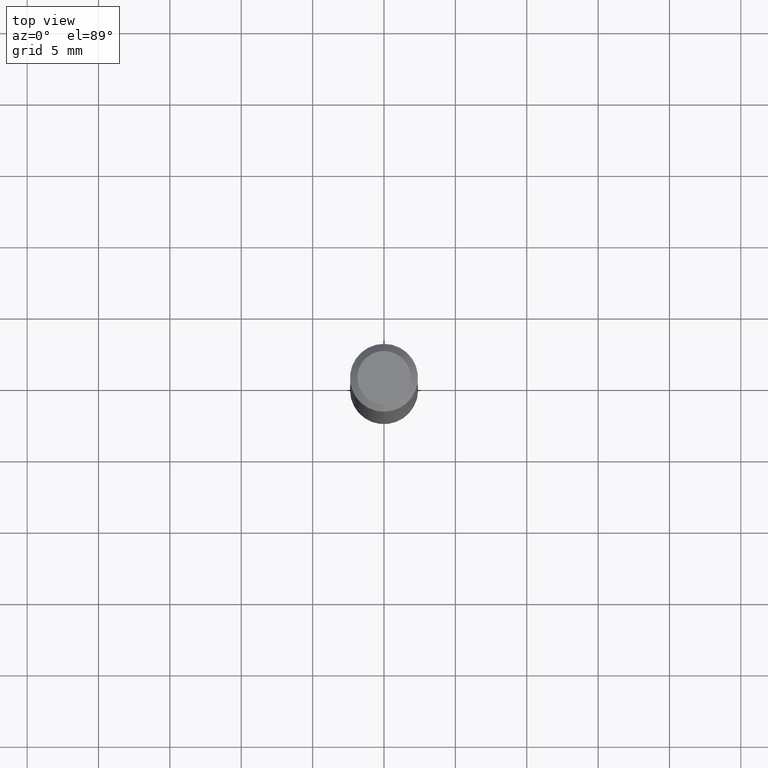
[diagram: clean part render]
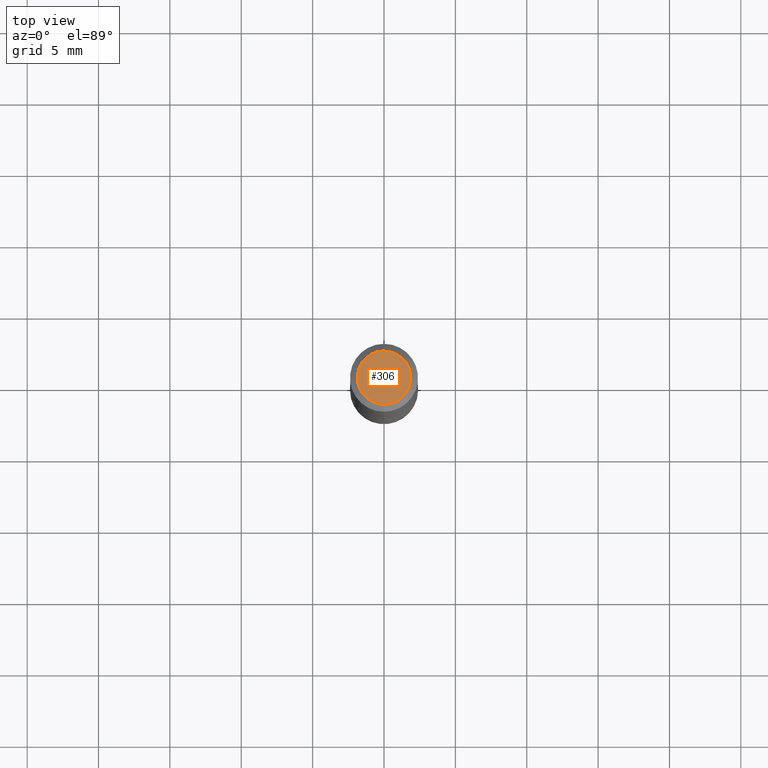
[diagram: same view with one face highlighted and labeled with its STEP entity id]
A machine part, top view. The second image highlights one B-rep face of the part: STEP entity #306.
In plain terms, the highlighted planar face has unit normal (0, -0, -1).
Its self-contained STEP definition (entity closure, byte-faithful):
#13 = AXIS2_PLACEMENT_3D ( 'NONE', #126, #130, #385 ) ;
#40 = CIRCLE ( 'NONE', #321, 0.07375000000000013489 ) ;
#68 = DIRECTION ( 'NONE',  ( -2.445692304464510391E-29, 3.491161276586350254E-15, 1.000000000000000000 ) ) ;
#71 = ORIENTED_EDGE ( 'NONE', *, *, #379, .T. ) ;
#88 = CIRCLE ( 'NONE', #154, 0.07375000000000013489 ) ;
#99 = CARTESIAN_POINT ( 'NONE',  ( 1.879681562415174393E-45, -2.683195866887273789E-31, -7.685682941324603213E-17 ) ) ;
#121 = CARTESIAN_POINT ( 'NONE',  ( -5.745667073133659498E-16, -0.07375000000000013489, 1.806163147349977463E-16 ) ) ;
#126 = CARTESIAN_POINT ( 'NONE',  ( 5.149934974793630771E-16, 0.07375000000000013489, -2.959015588548668315E-16 ) ) ;
#130 = DIRECTION ( 'NONE',  ( 2.445692304464510111E-29, -3.491161276586350254E-15, -1.000000000000000000 ) ) ;
#154 = AXIS2_PLACEMENT_3D ( 'NONE', #236, #357, #323 ) ;
#184 = CARTESIAN_POINT ( 'NONE',  ( 5.848231242562254878E-16, 0.07375000000000013489, -3.343299735614898105E-16 ) ) ;
#192 = VERTEX_POINT ( 'NONE', #184 ) ;
#194 = ORIENTED_EDGE ( 'NONE', *, *, #377, .T. ) ;
#236 = CARTESIAN_POINT ( 'NONE',  ( 1.879681562415174393E-45, -2.683195866887273789E-31, -7.685682941324603213E-17 ) ) ;
#289 = FACE_OUTER_BOUND ( 'NONE', #349, .T. ) ;
#306 = ADVANCED_FACE ( 'NONE', ( #289 ), #339, .F. ) ;
#321 = AXIS2_PLACEMENT_3D ( 'NONE', #99, #68, #360 ) ;
#323 = DIRECTION ( 'NONE',  ( -6.982962677686265922E-15, -1.000000000000000000, 3.491161276586350254E-15 ) ) ;
#328 = VERTEX_POINT ( 'NONE', #121 ) ;
#339 = PLANE ( 'NONE',  #13 ) ;
#349 = EDGE_LOOP ( 'NONE', ( #71, #194 ) ) ;
#357 = DIRECTION ( 'NONE',  ( -2.445692304464510391E-29, 3.491161276586350254E-15, 1.000000000000000000 ) ) ;
#360 = DIRECTION ( 'NONE',  ( -6.982962677686265922E-15, -1.000000000000000000, 3.491161276586350254E-15 ) ) ;
#377 = EDGE_CURVE ( 'NONE', #328, #192, #88, .T. ) ;
#379 = EDGE_CURVE ( 'NONE', #192, #328, #40, .T. ) ;
#385 = DIRECTION ( 'NONE',  ( 6.982962677686265922E-15, 1.000000000000000000, -3.491161276586350254E-15 ) ) ;